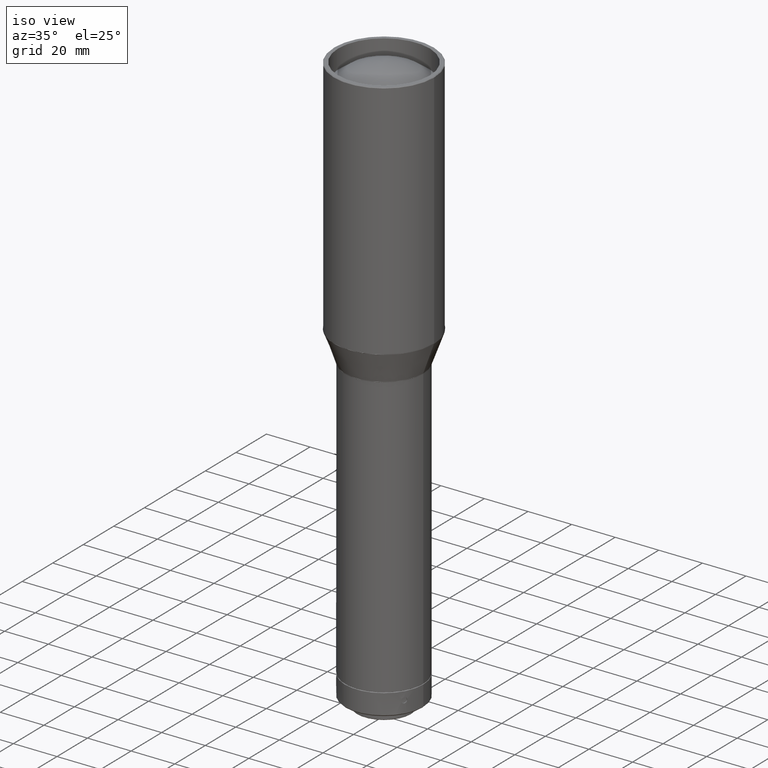
[diagram: clean part render]
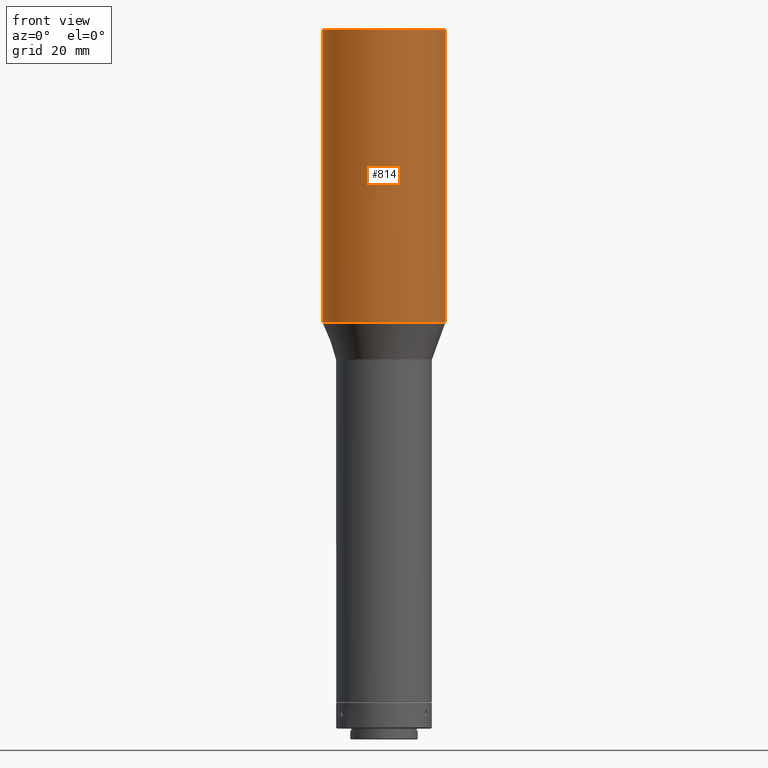
[diagram: tour spotlight — one face highlighted and labeled with its STEP entity id]
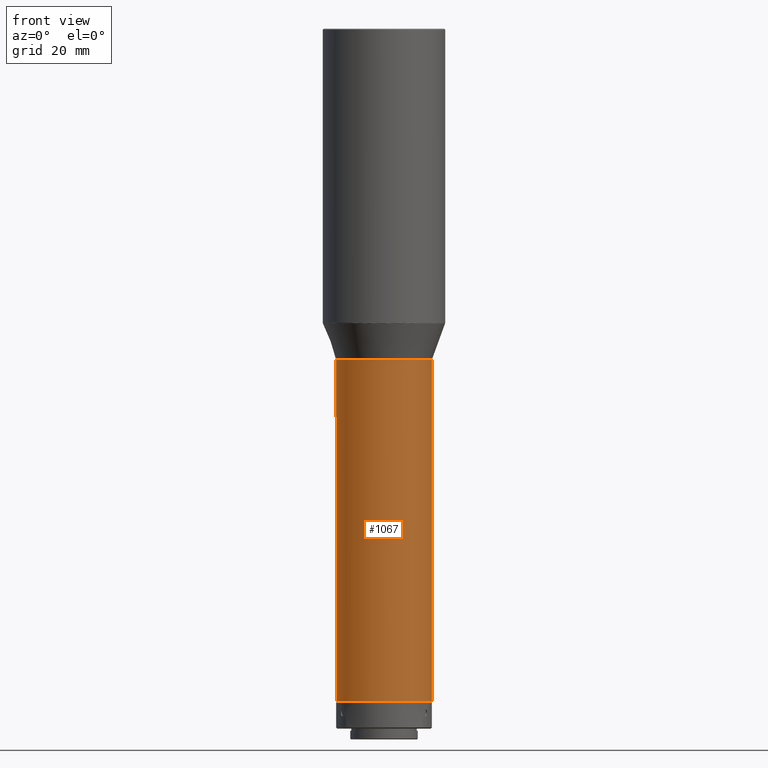
[diagram: tour spotlight — one face highlighted and labeled with its STEP entity id]
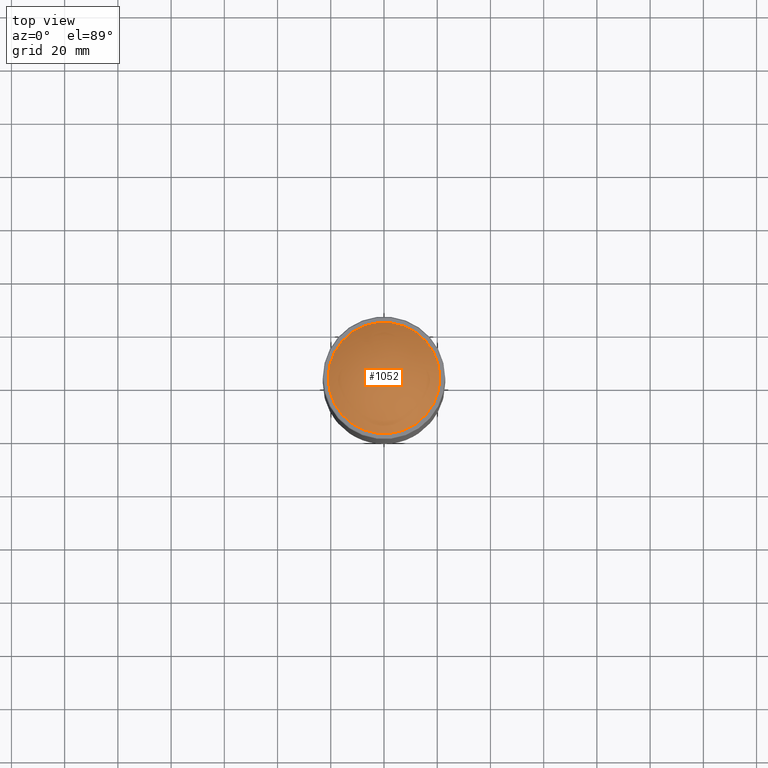
[diagram: tour spotlight — one face highlighted and labeled with its STEP entity id]
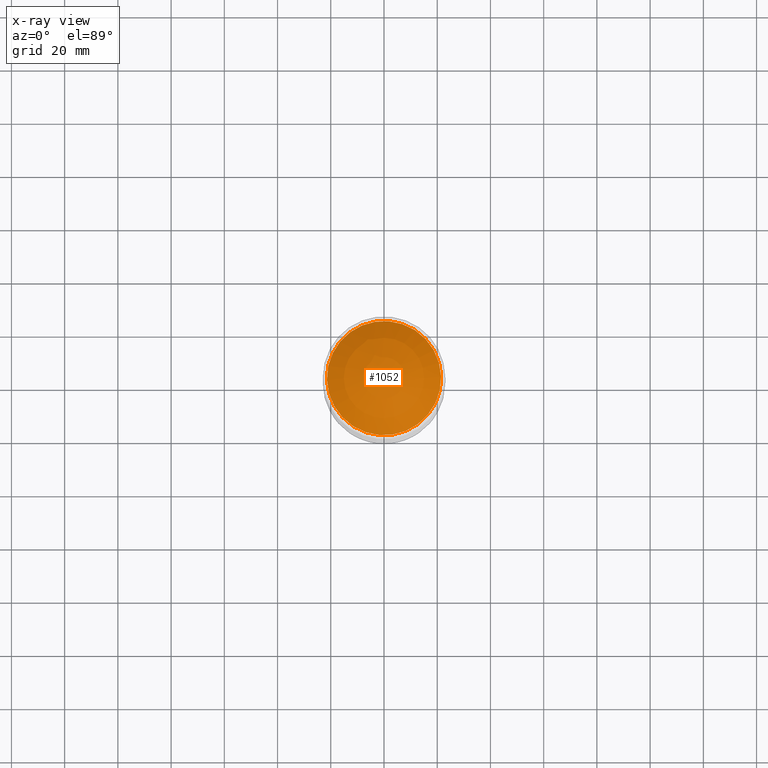
[diagram: x-ray of the same camera — body ghosted, this tour face saturated]
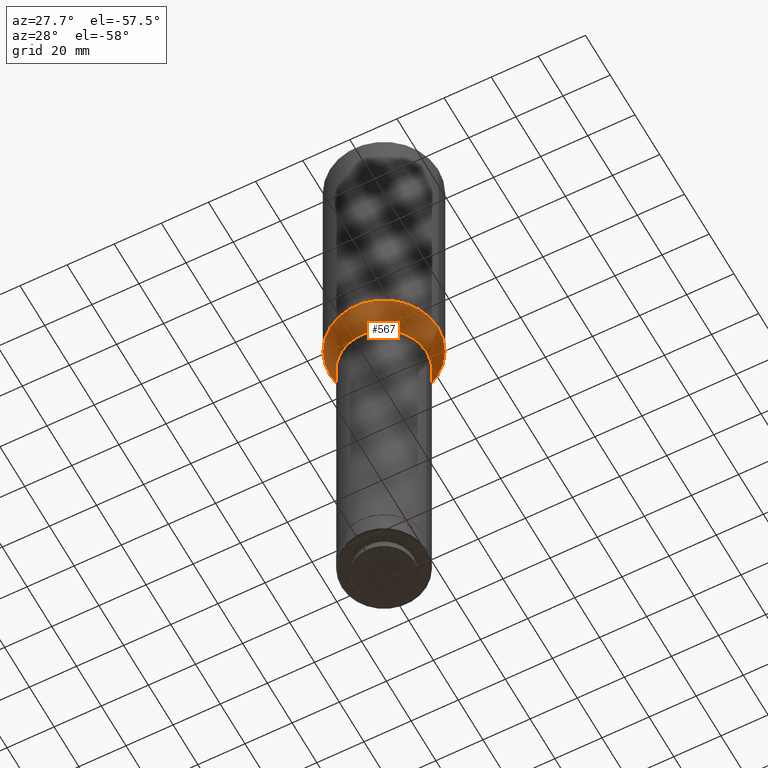
[diagram: tour spotlight — one face highlighted and labeled with its STEP entity id]
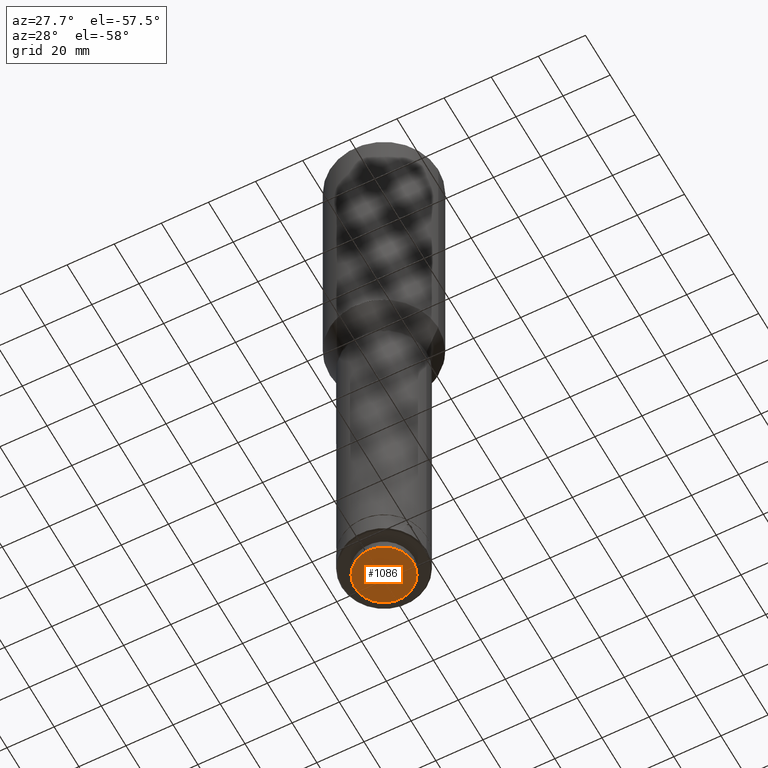
[diagram: tour spotlight — one face highlighted and labeled with its STEP entity id]
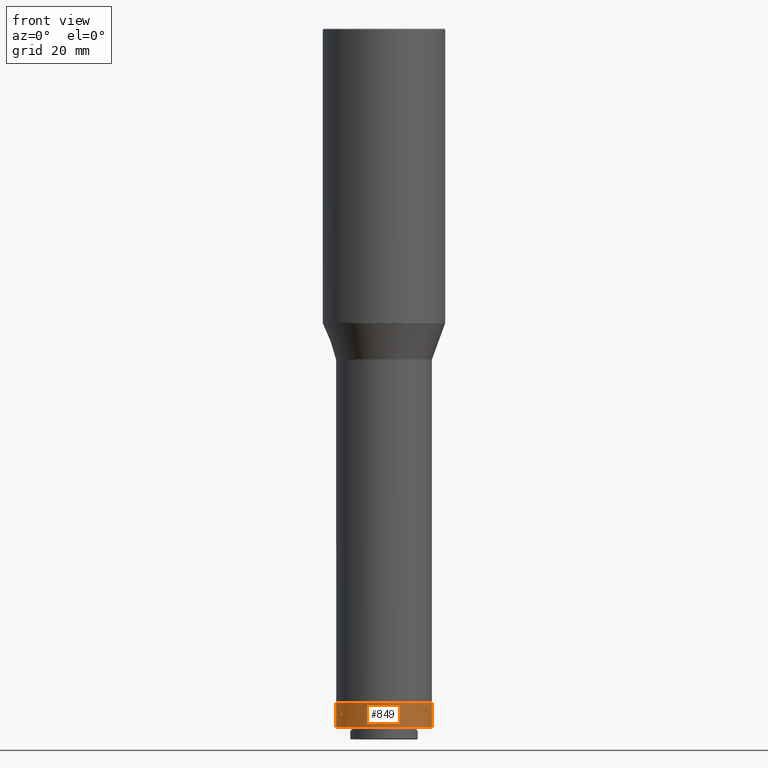
[diagram: tour spotlight — one face highlighted and labeled with its STEP entity id]
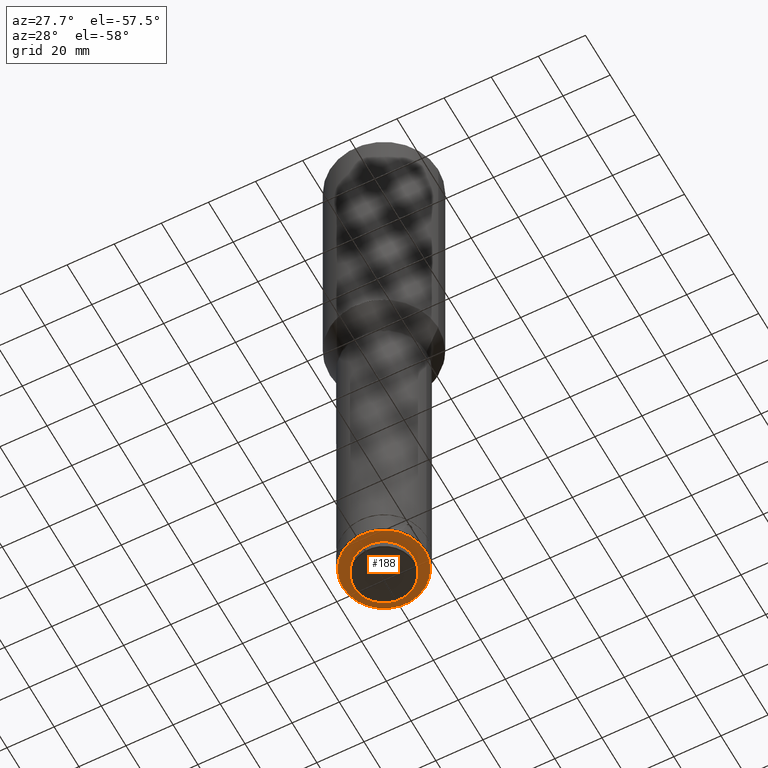
[diagram: tour spotlight — one face highlighted and labeled with its STEP entity id]
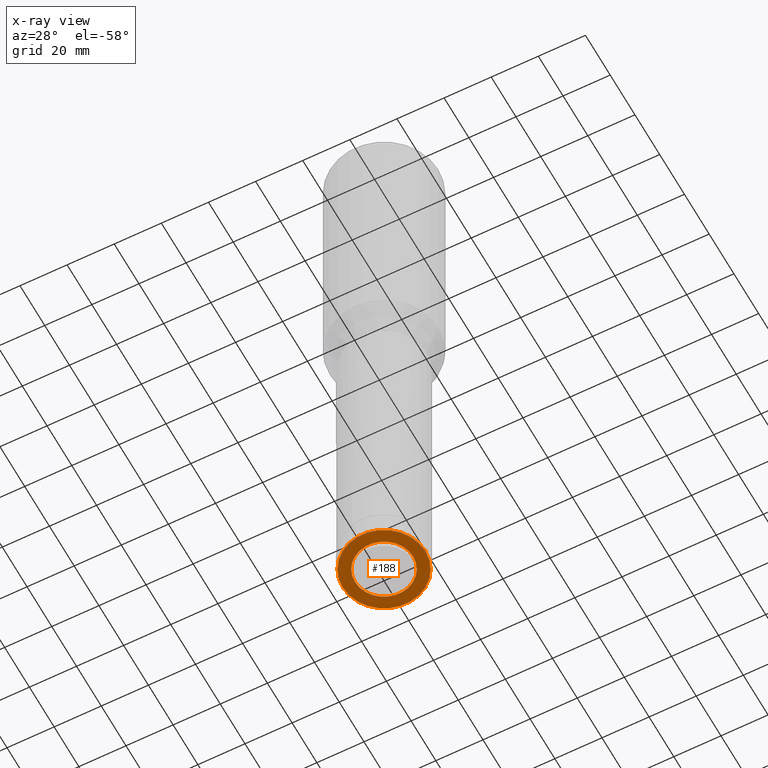
[diagram: x-ray of the same camera — body ghosted, this tour face saturated]
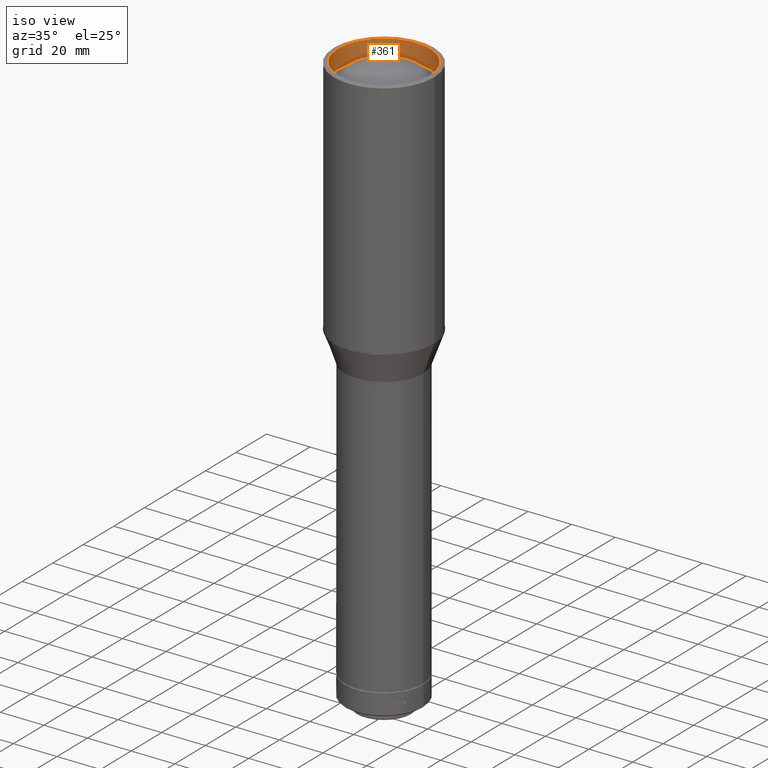
[diagram: tour spotlight — one face highlighted and labeled with its STEP entity id]
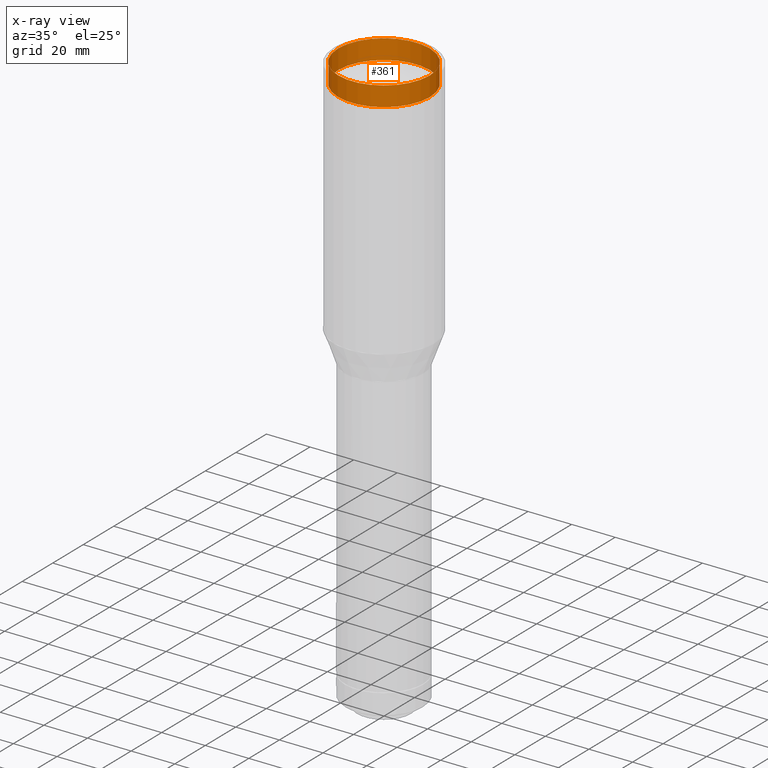
[diagram: x-ray of the same camera — body ghosted, this tour face saturated]
A machine part: a face-by-face anatomy tour. The part has 28 B-rep faces; the first image is the clean iso view, then the 8 largest visible faces are spotlighted one at a time (largest first), each with its STEP entity span.

Face 1 — front view, entity #814. In plain terms, the highlighted cylindrical surface (bore or boss wall) has radius 23 mm, axis along (0, -0, 1).
Definition (entity closure, byte-faithful):
#9 = FACE_OUTER_BOUND ( 'NONE', #668, .T. ) ;
#19 = EDGE_CURVE ( 'NONE', #526, #526, #1142, .T. ) ;
#80 = CARTESIAN_POINT ( 'NONE',  ( -1.311835599802159480E-14, -1.577111222069661861E-15, -492.4484950192920110 ) ) ;
#148 = EDGE_LOOP ( 'NONE', ( #614 ) ) ;
#190 = EDGE_CURVE ( 'NONE', #410, #410, #979, .T. ) ;
#410 = VERTEX_POINT ( 'NONE', #583 ) ;
#484 = AXIS2_PLACEMENT_3D ( 'NONE', #826, #898, #643 ) ;
#488 = DIRECTION ( 'NONE',  ( 1.000000000000000000, 0.000000000000000000, 0.000000000000000000 ) ) ;
#526 = VERTEX_POINT ( 'NONE', #945 ) ;
#555 = CYLINDRICAL_SURFACE ( 'NONE', #808, 23.00000000000000000 ) ;
#574 = DIRECTION ( 'NONE',  ( 1.110223024625157033E-16, -8.326672684688671588E-17, 1.000000000000000000 ) ) ;
#583 = CARTESIAN_POINT ( 'NONE',  ( 23.00000000000000000, -1.074881586943671244E-14, -382.2999999999999545 ) ) ;
#614 = ORIENTED_EDGE ( 'NONE', *, *, #190, .T. ) ;
#643 = DIRECTION ( 'NONE',  ( 1.000000000000000000, 0.000000000000000000, 0.000000000000000000 ) ) ;
#668 = EDGE_LOOP ( 'NONE', ( #911 ) ) ;
#692 = DIRECTION ( 'NONE',  ( 1.000000000000000000, 0.000000000000000000, 0.000000000000000000 ) ) ;
#796 = DIRECTION ( 'NONE',  ( 1.110223024625157033E-16, -8.326672684688671588E-17, 1.000000000000000000 ) ) ;
#808 = AXIS2_PLACEMENT_3D ( 'NONE', #1004, #574, #488 ) ;
#814 = ADVANCED_FACE ( 'NONE', ( #9, #1081 ), #555, .T. ) ;
#826 = CARTESIAN_POINT ( 'NONE',  ( -8.894164681988508993E-16, -1.074881586943671244E-14, -382.2999999999999545 ) ) ;
#898 = DIRECTION ( 'NONE',  ( -1.110223024625157033E-16, 8.326672684688671588E-17, -1.000000000000000000 ) ) ;
#911 = ORIENTED_EDGE ( 'NONE', *, *, #19, .T. ) ;
#945 = CARTESIAN_POINT ( 'NONE',  ( 22.99999999999998579, -1.577111222069661861E-15, -492.4484950192920110 ) ) ;
#979 = CIRCLE ( 'NONE', #484, 23.00000000000000000 ) ;
#1004 = CARTESIAN_POINT ( 'NONE',  ( -8.561097774601000685E-16, -1.077379588749077625E-14, -382.0000000000000000 ) ) ;
#1081 = FACE_OUTER_BOUND ( 'NONE', #148, .T. ) ;
#1087 = AXIS2_PLACEMENT_3D ( 'NONE', #80, #796, #692 ) ;
#1142 = CIRCLE ( 'NONE', #1087, 23.00000000000000000 ) ;

Face 2 — front view, entity #1067. In plain terms, the highlighted cylindrical surface (bore or boss wall) has radius 18 mm, axis along (0, -0, 1).
Definition (entity closure, byte-faithful):
#73 = EDGE_CURVE ( 'NONE', #153, #153, #141, .T. ) ;
#141 = CIRCLE ( 'NONE', #448, 17.99999999999999645 ) ;
#144 = DIRECTION ( 'NONE',  ( 1.110223024625158759E-16, -8.326672684688676518E-17, 1.000000000000000000 ) ) ;
#153 = VERTEX_POINT ( 'NONE', #1036 ) ;
#160 = DIRECTION ( 'NONE',  ( -1.110223024625158759E-16, 8.326672684688676518E-17, -1.000000000000000000 ) ) ;
#166 = CIRCLE ( 'NONE', #666, 17.99999999999998224 ) ;
#191 = DIRECTION ( 'NONE',  ( 1.000000000000000000, 0.000000000000000000, 0.000000000000000000 ) ) ;
#247 = CARTESIAN_POINT ( 'NONE',  ( -4.084962870054682394E-14, 5.702647918337709996E-15, -634.9448220000001584 ) ) ;
#293 = CYLINDRICAL_SURFACE ( 'NONE', #330, 17.99999999999998224 ) ;
#318 = DIRECTION ( 'NONE',  ( 1.110223024625158759E-16, -8.326672684688676518E-17, 1.000000000000000000 ) ) ;
#319 = VERTEX_POINT ( 'NONE', #667 ) ;
#330 = AXIS2_PLACEMENT_3D ( 'NONE', #1003, #318, #191 ) ;
#393 = EDGE_LOOP ( 'NONE', ( #1117 ) ) ;
#395 = FACE_OUTER_BOUND ( 'NONE', #393, .T. ) ;
#412 = ORIENTED_EDGE ( 'NONE', *, *, #770, .T. ) ;
#425 = EDGE_LOOP ( 'NONE', ( #412 ) ) ;
#448 = AXIS2_PLACEMENT_3D ( 'NONE', #967, #160, #888 ) ;
#570 = FACE_OUTER_BOUND ( 'NONE', #425, .T. ) ;
#603 = DIRECTION ( 'NONE',  ( 1.000000000000000000, 0.000000000000000000, 0.000000000000000000 ) ) ;
#666 = AXIS2_PLACEMENT_3D ( 'NONE', #247, #144, #603 ) ;
#667 = CARTESIAN_POINT ( 'NONE',  ( 17.99999999999993960, 5.702647918337709996E-15, -634.9448220000001584 ) ) ;
#770 = EDGE_CURVE ( 'NONE', #319, #319, #166, .T. ) ;
#888 = DIRECTION ( 'NONE',  ( 1.000000000000000000, -1.387778780781445182E-16, 0.000000000000000000 ) ) ;
#967 = CARTESIAN_POINT ( 'NONE',  ( -2.659366718682423316E-14, -4.989323216954218101E-15, -506.5385360779819166 ) ) ;
#1003 = CARTESIAN_POINT ( 'NONE',  ( -2.266722252775026602E-14, -7.934156711259683199E-15, -471.1722666709893019 ) ) ;
#1036 = CARTESIAN_POINT ( 'NONE',  ( 17.99999999999996803, -7.487325022360819528E-15, -506.5385360779819166 ) ) ;
#1067 = ADVANCED_FACE ( 'NONE', ( #570, #395 ), #293, .T. ) ;
#1117 = ORIENTED_EDGE ( 'NONE', *, *, #73, .T. ) ;

Face 3 — top view, entity #1052. An x-ray twin of the same camera follows (body ghosted, this face saturated) — the face is partly hidden behind the body. In plain terms, the highlighted spherical surface has radius 31.2095 mm.
Definition (entity closure, byte-faithful):
#44 = EDGE_LOOP ( 'NONE', ( #234 ) ) ;
#62 = AXIS2_PLACEMENT_3D ( 'NONE', #389, #582, #331 ) ;
#132 = AXIS2_PLACEMENT_3D ( 'NONE', #661, #918, #1013 ) ;
#234 = ORIENTED_EDGE ( 'NONE', *, *, #339, .F. ) ;
#243 = CARTESIAN_POINT ( 'NONE',  ( 8.217209483082314136, -19.81591518845252864, -391.0000000000000000 ) ) ;
#331 = DIRECTION ( 'NONE',  ( 0.3830490080632378835, -0.9237280213470682178, 0.000000000000000000 ) ) ;
#339 = EDGE_CURVE ( 'NONE', #1024, #1024, #961, .T. ) ;
#389 = CARTESIAN_POINT ( 'NONE',  ( 0.000000000000000000, -1.734723475976807094E-15, -391.0000000000000000 ) ) ;
#577 = FACE_OUTER_BOUND ( 'NONE', #44, .T. ) ;
#582 = DIRECTION ( 'NONE',  ( -1.232595164407830946E-32, -1.318609258053555361E-16, -1.000000000000000000 ) ) ;
#661 = CARTESIAN_POINT ( 'NONE',  ( 0.000000000000000000, -6.938893903907228378E-15, -413.6680567275546991 ) ) ;
#918 = DIRECTION ( 'NONE',  ( 4.665676044949140993E-17, 1.934749774458438248E-17, 1.000000000000000000 ) ) ;
#924 = SPHERICAL_SURFACE ( 'NONE', #132, 31.20951493132240273 ) ;
#961 = CIRCLE ( 'NONE', #62, 21.45211006975307910 ) ;
#1013 = DIRECTION ( 'NONE',  ( -0.3830490080632378835, 0.9237280213470681067, 0.000000000000000000 ) ) ;
#1024 = VERTEX_POINT ( 'NONE', #243 ) ;
#1052 = ADVANCED_FACE ( 'NONE', ( #577 ), #924, .T. ) ;

Face 4 — auxiliary view, entity #567. In plain terms, the highlighted conical surface has half-angle 20 deg.
Definition (entity closure, byte-faithful):
#51 = CARTESIAN_POINT ( 'NONE',  ( -22.93969262078594085, -2.950554053521622452E-15, -492.7905151626176234 ) ) ;
#60 = EDGE_LOOP ( 'NONE', ( #568 ) ) ;
#66 = VERTEX_POINT ( 'NONE', #51 ) ;
#91 = DIRECTION ( 'NONE',  ( 1.110223024625158759E-16, -8.326672684688676518E-17, 1.000000000000000000 ) ) ;
#137 = CARTESIAN_POINT ( 'NONE',  ( -2.506733025049765150E-14, -6.134075919199164600E-15, -492.7905151626176234 ) ) ;
#161 = CIRCLE ( 'NONE', #812, 18.06030737921405915 ) ;
#275 = CARTESIAN_POINT ( 'NONE',  ( -2.655569532302366090E-14, -5.017802114804646506E-15, -506.1965159346563041 ) ) ;
#376 = EDGE_CURVE ( 'NONE', #66, #66, #720, .T. ) ;
#423 = VERTEX_POINT ( 'NONE', #779 ) ;
#446 = CARTESIAN_POINT ( 'NONE',  ( -2.602085213965210642E-14, -6.134075919199149611E-15, -492.7905151626176234 ) ) ;
#537 = DIRECTION ( 'NONE',  ( 1.000000000000000000, 0.000000000000000000, 0.000000000000000000 ) ) ;
#540 = DIRECTION ( 'NONE',  ( 1.000000000000000000, -1.387778780781445922E-16, 0.000000000000000000 ) ) ;
#567 = ADVANCED_FACE ( 'NONE', ( #949, #805 ), #708, .T. ) ;
#568 = ORIENTED_EDGE ( 'NONE', *, *, #576, .T. ) ;
#576 = EDGE_CURVE ( 'NONE', #423, #423, #161, .T. ) ;
#653 = EDGE_LOOP ( 'NONE', ( #1134 ) ) ;
#686 = DIRECTION ( 'NONE',  ( -1.000000000000000000, 1.387778780781446169E-16, 0.000000000000000000 ) ) ;
#708 = CONICAL_SURFACE ( 'NONE', #1103, 22.93969262078588400, 0.3490658503988669503 ) ;
#720 = CIRCLE ( 'NONE', #759, 22.93969262078591598 ) ;
#759 = AXIS2_PLACEMENT_3D ( 'NONE', #137, #1028, #686 ) ;
#779 = CARTESIAN_POINT ( 'NONE',  ( 18.06030737921403428, -7.524173250331030051E-15, -506.1965159346563041 ) ) ;
#799 = DIRECTION ( 'NONE',  ( 0.000000000000000000, -0.000000000000000000, 1.000000000000000000 ) ) ;
#805 = FACE_OUTER_BOUND ( 'NONE', #653, .T. ) ;
#812 = AXIS2_PLACEMENT_3D ( 'NONE', #275, #91, #540 ) ;
#949 = FACE_BOUND ( 'NONE', #60, .T. ) ;
#1028 = DIRECTION ( 'NONE',  ( 1.110223024625158759E-16, -8.326672684688676518E-17, 1.000000000000000000 ) ) ;
#1103 = AXIS2_PLACEMENT_3D ( 'NONE', #446, #799, #537 ) ;
#1134 = ORIENTED_EDGE ( 'NONE', *, *, #376, .F. ) ;

Face 5 — auxiliary view, entity #1086. In plain terms, the highlighted planar face has unit normal (-0, -0, 1).
Definition (entity closure, byte-faithful):
#118 = DIRECTION ( 'NONE',  ( 0.000000000000000000, 0.000000000000000000, 1.000000000000000000 ) ) ;
#163 = EDGE_LOOP ( 'NONE', ( #483 ) ) ;
#173 = AXIS2_PLACEMENT_3D ( 'NONE', #485, #118, #1007 ) ;
#481 = PLANE ( 'NONE',  #1060 ) ;
#483 = ORIENTED_EDGE ( 'NONE', *, *, #981, .F. ) ;
#485 = CARTESIAN_POINT ( 'NONE',  ( 1.734723475976807094E-15, 1.743382805730993371E-14, -649.0448220000001811 ) ) ;
#573 = DIRECTION ( 'NONE',  ( 1.000000000000000000, 0.000000000000000000, 1.110223024625154568E-16 ) ) ;
#595 = CARTESIAN_POINT ( 'NONE',  ( 12.39999999999998970, 1.743382805730993371E-14, -649.0448220000001811 ) ) ;
#823 = CIRCLE ( 'NONE', #173, 12.39999999999998792 ) ;
#828 = DIRECTION ( 'NONE',  ( -1.110223024625154568E-16, -6.938893903907198333E-18, 1.000000000000000000 ) ) ;
#846 = VERTEX_POINT ( 'NONE', #595 ) ;
#981 = EDGE_CURVE ( 'NONE', #846, #846, #823, .T. ) ;
#993 = CARTESIAN_POINT ( 'NONE',  ( 1.574058863050023593E-15, 10.75000000000002842, -649.0448220000001811 ) ) ;
#1007 = DIRECTION ( 'NONE',  ( 1.000000000000000000, 0.000000000000000000, 0.000000000000000000 ) ) ;
#1060 = AXIS2_PLACEMENT_3D ( 'NONE', #993, #828, #573 ) ;
#1086 = ADVANCED_FACE ( 'NONE', ( #1091 ), #481, .F. ) ;
#1091 = FACE_OUTER_BOUND ( 'NONE', #163, .T. ) ;

Face 6 — front view, entity #849. In plain terms, the highlighted cylindrical surface (bore or boss wall) has radius 18 mm, axis along (-0, -0, 1).
Definition (entity closure, byte-faithful):
#4 = CARTESIAN_POINT ( 'NONE',  ( 15.50735797605625521, -9.140483702072643268, -640.2949343759026988 ) ) ;
#6 = CIRCLE ( 'NONE', #869, 18.00000000000004619 ) ;
#11 = CARTESIAN_POINT ( 'NONE',  ( 14.92582393315542255, -10.06080413865837109, -639.0448220000002948 ) ) ;
#35 = FACE_BOUND ( 'NONE', #123, .T. ) ;
#39 = CARTESIAN_POINT ( 'NONE',  ( -15.19139325230760207, -9.655839439901388488, -638.0437259321262218 ) ) ;
#41 = CYLINDRICAL_SURFACE ( 'NONE', #287, 18.00000000000002487 ) ;
#48 = CARTESIAN_POINT ( 'NONE',  ( -14.92582410297039530, -10.06080388672738124, -639.2100232896941634 ) ) ;
#54 = CARTESIAN_POINT ( 'NONE',  ( -15.26509725241262494, -9.539377978348499099, -637.9521463457094796 ) ) ;
#55 = CARTESIAN_POINT ( 'NONE',  ( 0.7665048592950636230, 17.98405222760588273, -640.0459186175248760 ) ) ;
#67 = CARTESIAN_POINT ( 'NONE',  ( -16.17582393315553446, -7.895740629197071314, -639.0448220000002948 ) ) ;
#69 = ORIENTED_EDGE ( 'NONE', *, *, #157, .T. ) ;
#70 = CARTESIAN_POINT ( 'NONE',  ( -0.7665056236648915000, 17.98405219532860855, -638.0437259321263355 ) ) ;
#76 = CARTESIAN_POINT ( 'NONE',  ( 0.1639396191514416457, 17.99999215467093094, -637.7949349727664412 ) ) ;
#78 = CARTESIAN_POINT ( 'NONE',  ( 14.92582393315540301, -10.06080413865839418, -638.8796227607349465 ) ) ;
#81 = CARTESIAN_POINT ( 'NONE',  ( -1.217463806281650296, 17.95889011854552564, -639.3721228894954720 ) ) ;
#82 = CARTESIAN_POINT ( 'NONE',  ( 16.06471715756163832, -8.120254114432432502, -638.2769028980899293 ) ) ;
#88 = CARTESIAN_POINT ( 'NONE',  ( 15.89407479287074665, -8.449912178065822843, -640.1371181720306822 ) ) ;
#97 = CARTESIAN_POINT ( 'NONE',  ( 15.95885680708794574, -8.326356316898305465, -640.0439920424840921 ) ) ;
#103 = DIRECTION ( 'NONE',  ( -1.110223024625158020E-16, -6.938893903907199104E-18, 1.000000000000000000 ) ) ;
#106 = B_SPLINE_CURVE_WITH_KNOTS ( 'NONE', 3,
 ( #164, #874, #346, #620, #267, #1119, #357, #886, #76, #170, #1136, #530, #70, #694, #975, #175, #337, #709, #81, #440, #535, #881, #798, #856, #151, #445, #1058, #1045, #55, #703, #1140, #524, #1053, #434 ),
 .UNSPECIFIED., .T., .F.,
 ( 4, 2, 2, 2, 2, 2, 2, 2, 2, 2, 2, 2, 2, 2, 2, 2, 4 ),
 ( 0.000000000000000000, 0.0004885519476059284501, 0.0009771038952118569001, 0.001465655842817785350, 0.001954207790423713800, 0.002442759738029642250, 0.002931311685635570700, 0.003419863633241499151, 0.003908415580847427601, 0.004396967528453355617, 0.004885519476059284501, 0.005374071423665213385, 0.005862623371271141401, 0.006351175318877069417, 0.006839727266482998301, 0.007328279214088927185, 0.007816831161694855201 ),
 .UNSPECIFIED. ) ;
#123 = EDGE_LOOP ( 'NONE', ( #387 ) ) ;
#126 = FACE_OUTER_BOUND ( 'NONE', #322, .T. ) ;
#129 = CARTESIAN_POINT ( 'NONE',  ( -16.10573089449707496, -8.037996915324857383, -639.6752479346065456 ) ) ;
#134 = VERTEX_POINT ( 'NONE', #67 ) ;
#136 = CARTESIAN_POINT ( 'NONE',  ( -15.19026449493899200, -9.657597251847127140, -640.0439920424840921 ) ) ;
#151 = CARTESIAN_POINT ( 'NONE',  ( -0.1639394304986140916, 17.99999215467996194, -640.2947090273643198 ) ) ;
#157 = EDGE_CURVE ( 'NONE', #224, #224, #497, .T. ) ;
#164 = CARTESIAN_POINT ( 'NONE',  ( 1.249999999999993339, 17.95654476785557918, -639.0448220000000674 ) ) ;
#170 = CARTESIAN_POINT ( 'NONE',  ( -0.1622122895000118192, 18.00000780388934274, -637.7947096239676057 ) ) ;
#172 = CARTESIAN_POINT ( 'NONE',  ( 15.95789887597215362, -8.328212755427120584, -638.0437259321262218 ) ) ;
#175 = CARTESIAN_POINT ( 'NONE',  ( -1.217386932848440351, 17.95889559784538392, -638.7171987959093258 ) ) ;
#203 = CARTESIAN_POINT ( 'NONE',  ( 14.94416663059035599, -10.03373538488429695, -639.3724470172559222 ) ) ;
#220 = CARTESIAN_POINT ( 'NONE',  ( -16.16158720264614956, -7.925089998557202087, -638.7175229706283517 ) ) ;
#224 = VERTEX_POINT ( 'NONE', #870 ) ;
#235 = CARTESIAN_POINT ( 'NONE',  ( -15.01384736159117494, -9.929166118684831233, -639.6748296652777981 ) ) ;
#239 = CARTESIAN_POINT ( 'NONE',  ( -16.06431486166299294, -8.121028761097687010, -638.2761908769150523 ) ) ;
#242 = CARTESIAN_POINT ( 'NONE',  ( 14.94412286735165374, -10.03380008369034826, -638.7175229706283517 ) ) ;
#258 = CARTESIAN_POINT ( 'NONE',  ( 15.19026408422145380, -9.657597898278533322, -638.0456525139833275 ) ) ;
#264 = CARTESIAN_POINT ( 'NONE',  ( 15.74948724688814217, -8.716454428236504626, -637.8270371631306261 ) ) ;
#267 = CARTESIAN_POINT ( 'NONE',  ( 0.9991402188564681985, 17.97261914514093917, -638.2761908769151660 ) ) ;
#278 = CARTESIAN_POINT ( 'NONE',  ( 16.17582379988438390, -7.895740902226656033, -639.2100232896941634 ) ) ;
#287 = AXIS2_PLACEMENT_3D ( 'NONE', #557, #1102, #298 ) ;
#292 = FACE_OUTER_BOUND ( 'NONE', #879, .T. ) ;
#296 = CARTESIAN_POINT ( 'NONE',  ( 15.67042018912280099, -8.858020365846076771, -640.2947090273642061 ) ) ;
#298 = DIRECTION ( 'NONE',  ( 1.000000000000000000, 0.000000000000000000, 0.000000000000000000 ) ) ;
#300 = EDGE_LOOP ( 'NONE', ( #1031 ) ) ;
#315 = CARTESIAN_POINT ( 'NONE',  ( -15.26487600238793441, -9.539716451242950868, -640.1371181720306822 ) ) ;
#317 = FACE_BOUND ( 'NONE', #969, .T. ) ;
#320 = B_SPLINE_CURVE_WITH_KNOTS ( 'NONE', 3,
 ( #1039, #693, #220, #501, #239, #1112, #329, #324, #685, #776, #1106, #54, #39, #407, #677, #1099, #336, #48, #1027, #235, #592, #136, #315, #660, #1032, #1012, #514, #928, #941, #426, #129, #1020, #597, #345 ),
 .UNSPECIFIED., .T., .F.,
 ( 4, 2, 2, 2, 2, 2, 2, 2, 2, 2, 2, 2, 2, 2, 2, 2, 4 ),
 ( 0.000000000000000000, 0.0004885519476059294259, 0.0009771038952118588517, 0.001465655842817788386, 0.001954207790423717703, 0.002442759738029647021, 0.002931311685635576772, 0.003419863633241506089, 0.003908415580847435407, 0.004396967528453365158, 0.004885519476059294042, 0.005374071423665223793, 0.005862623371271153544, 0.006351175318877082428, 0.006839727266483012179, 0.007328279214088941063, 0.007816831161694870814 ),
 .UNSPECIFIED. ) ;
#322 = EDGE_LOOP ( 'NONE', ( #533 ) ) ;
#324 = CARTESIAN_POINT ( 'NONE',  ( -15.75062872817975901, -8.714374564439967941, -637.8278066990361594 ) ) ;
#329 = CARTESIAN_POINT ( 'NONE',  ( -15.89407510756413444, -8.449911588734551060, -637.9525261845232080 ) ) ;
#336 = CARTESIAN_POINT ( 'NONE',  ( -14.92582376334308414, -10.06080439058546716, -638.8796252969528950 ) ) ;
#337 = CARTESIAN_POINT ( 'NONE',  ( -1.250000303081702180, 17.95654474675731649, -638.8796252969532361 ) ) ;
#345 = CARTESIAN_POINT ( 'NONE',  ( -16.17582393315553801, -7.895740629197071314, -639.0448220000002948 ) ) ;
#346 = CARTESIAN_POINT ( 'NONE',  ( 1.217464335294314859, 17.95889008224768801, -638.7175229706282380 ) ) ;
#357 = CARTESIAN_POINT ( 'NONE',  ( 0.6291994582050528528, 17.98962860717572809, -637.9525261845229807 ) ) ;
#364 = EDGE_CURVE ( 'NONE', #504, #504, #6, .T. ) ;
#371 = AXIS2_PLACEMENT_3D ( 'NONE', #636, #103, #470 ) ;
#375 = CARTESIAN_POINT ( 'NONE',  ( 16.16158696957454666, -7.925090474844777688, -639.3721228894951309 ) ) ;
#378 = CARTESIAN_POINT ( 'NONE',  ( 16.17582406642461734, -7.895740356171729424, -638.8796252969528950 ) ) ;
#387 = ORIENTED_EDGE ( 'NONE', *, *, #746, .T. ) ;
#404 = EDGE_CURVE ( 'NONE', #415, #415, #106, .T. ) ;
#407 = CARTESIAN_POINT ( 'NONE',  ( -15.06470492706446684, -9.852326105843829396, -638.2769028980899293 ) ) ;
#415 = VERTEX_POINT ( 'NONE', #857 ) ;
#426 = CARTESIAN_POINT ( 'NONE',  ( -16.06471677035732881, -8.120254879791536595, -639.8127421707624762 ) ) ;
#434 = CARTESIAN_POINT ( 'NONE',  ( 1.249999999999993339, 17.95654476785557918, -639.0448220000000674 ) ) ;
#440 = CARTESIAN_POINT ( 'NONE',  ( -1.091986416381329317, 17.96695628302236258, -639.6748296652781391 ) ) ;
#442 = CARTESIAN_POINT ( 'NONE',  ( 15.66957017123615437, -8.859523938431868473, -637.7947096239676057 ) ) ;
#445 = CARTESIAN_POINT ( 'NONE',  ( 0.1622121008445730206, 18.00000780388030464, -640.2949343759024714 ) ) ;
#447 = CARTESIAN_POINT ( 'NONE',  ( 16.10573125108191306, -8.037996199706910261, -638.4143974048876089 ) ) ;
#455 = CARTESIAN_POINT ( 'NONE',  ( 15.06470539628279326, -9.852325387835419335, -639.8127421707627036 ) ) ;
#462 = CARTESIAN_POINT ( 'NONE',  ( 15.19139366244534806, -9.655838794076540665, -640.0459186175247623 ) ) ;
#465 = CARTESIAN_POINT ( 'NONE',  ( 15.75062854503696919, -8.714374892937582828, -640.2618373772535278 ) ) ;
#470 = DIRECTION ( 'NONE',  ( 1.000000000000000000, 0.000000000000000000, 0.000000000000000000 ) ) ;
#497 = B_SPLINE_CURVE_WITH_KNOTS ( 'NONE', 3,
 ( #1035, #78, #242, #705, #972, #258, #1126, #1042, #790, #442, #264, #617, #172, #82, #447, #627, #378, #278, #375, #731, #807, #97, #88, #465, #296, #4, #1065, #986, #462, #455, #563, #203, #893, #11 ),
 .UNSPECIFIED., .T., .F.,
 ( 4, 2, 2, 2, 2, 2, 2, 2, 2, 2, 2, 2, 2, 2, 2, 2, 4 ),
 ( 0.000000000000000000, 0.0004885519476059293174, 0.0009771038952118586349, 0.001465655842817787952, 0.001954207790423717270, 0.002442759738029646587, 0.002931311685635575905, 0.003419863633241505222, 0.003908415580847434539, 0.004396967528453364291, 0.004885519476059293174, 0.005374071423665222058, 0.005862623371271151809, 0.006351175318877081560, 0.006839727266483010444, 0.007328279214088939328, 0.007816831161694869079 ),
 .UNSPECIFIED. ) ;
#501 = CARTESIAN_POINT ( 'NONE',  ( -16.10583412538214887, -8.037789467238031449, -638.4148156262731391 ) ) ;
#504 = VERTEX_POINT ( 'NONE', #853 ) ;
#514 = CARTESIAN_POINT ( 'NONE',  ( -15.74948706598770443, -8.716454752419855012, -640.2626069096972969 ) ) ;
#524 = CARTESIAN_POINT ( 'NONE',  ( 1.217386422865420093, 17.95889563292112356, -639.3724470172559222 ) ) ;
#530 = CARTESIAN_POINT ( 'NONE',  ( -0.6287950393457077958, 17.98965100100363657, -637.9521463457097070 ) ) ;
#533 = ORIENTED_EDGE ( 'NONE', *, *, #364, .F. ) ;
#535 = CARTESIAN_POINT ( 'NONE',  ( -0.9991393837938855604, 17.97261919133776331, -639.8134541668030124 ) ) ;
#557 = CARTESIAN_POINT ( 'NONE',  ( 6.164915043108251895E-16, 1.733876521082640279E-14, -635.0448219999999537 ) ) ;
#563 = CARTESIAN_POINT ( 'NONE',  ( 15.01397497146087900, -9.928973643487813305, -639.6752479346065456 ) ) ;
#588 = CARTESIAN_POINT ( 'NONE',  ( 6.497981950495766119E-16, 1.734084687899757307E-14, -635.3448220000000219 ) ) ;
#592 = CARTESIAN_POINT ( 'NONE',  ( -15.06517510034527163, -9.851589683955904064, -639.8134541668023303 ) ) ;
#597 = CARTESIAN_POINT ( 'NONE',  ( -16.17582393315553091, -7.895740629197097071, -639.2100212392657568 ) ) ;
#617 = CARTESIAN_POINT ( 'NONE',  ( 15.89389229175800899, -8.450273022655029109, -637.9521463457094796 ) ) ;
#620 = CARTESIAN_POINT ( 'NONE',  ( 1.091987193791648991, 17.96695623533832986, -638.4148156262726843 ) ) ;
#627 = CARTESIAN_POINT ( 'NONE',  ( 16.16155327807076247, -7.925159788840821840, -638.7171987959093258 ) ) ;
#636 = CARTESIAN_POINT ( 'NONE',  ( 1.671203377704719860E-15, 1.740468470291352462E-14, -644.5448219999999537 ) ) ;
#655 = FACE_BOUND ( 'NONE', #300, .T. ) ;
#660 = CARTESIAN_POINT ( 'NONE',  ( -15.42218430790379102, -9.283256999105455876, -640.2618373772535278 ) ) ;
#677 = CARTESIAN_POINT ( 'NONE',  ( -15.01397453000998716, -9.928974310108317880, -638.4143974048876089 ) ) ;
#682 = CARTESIAN_POINT ( 'NONE',  ( 18.00000000000002487, 1.740468470291352462E-14, -644.5448219999999537 ) ) ;
#685 = CARTESIAN_POINT ( 'NONE',  ( -15.67042028344150317, -8.858020202463196213, -637.7949349727663275 ) ) ;
#693 = CARTESIAN_POINT ( 'NONE',  ( -16.17582393315554512, -7.895740629197045557, -638.8796227607349465 ) ) ;
#694 = CARTESIAN_POINT ( 'NONE',  ( -1.000012230497476340, 17.97258022027634894, -638.2769028980902704 ) ) ;
#703 = CARTESIAN_POINT ( 'NONE',  ( 1.000011374074573300, 17.97258026762714778, -639.8127421707624762 ) ) ;
#705 = CARTESIAN_POINT ( 'NONE',  ( 15.01384693159026185, -9.929166768100156304, -638.4148156262731391 ) ) ;
#709 = CARTESIAN_POINT ( 'NONE',  ( -1.249999696914079417, 17.95654478895415807, -639.2100232896942771 ) ) ;
#731 = CARTESIAN_POINT ( 'NONE',  ( 16.10583377797243898, -8.037790164337410559, -639.6748296652777981 ) ) ;
#746 = EDGE_CURVE ( 'NONE', #134, #134, #320, .T. ) ;
#750 = DIRECTION ( 'NONE',  ( -1.110223024625158020E-16, -6.938893903907199104E-18, 1.000000000000000000 ) ) ;
#776 = CARTESIAN_POINT ( 'NONE',  ( -15.50735788173648544, -9.140483865457357027, -637.7947096239676057 ) ) ;
#790 = CARTESIAN_POINT ( 'NONE',  ( 15.50648066428972172, -9.141971952207596175, -637.7949349727663275 ) ) ;
#798 = CARTESIAN_POINT ( 'NONE',  ( -0.6291987904827325284, 17.98962862930889273, -640.1371181720307959 ) ) ;
#807 = CARTESIAN_POINT ( 'NONE',  ( 16.06431448413921359, -8.121029507381731349, -639.8134541668023303 ) ) ;
#849 = ADVANCED_FACE ( 'NONE', ( #292, #317, #35, #126, #655 ), #41, .T. ) ;
#853 = CARTESIAN_POINT ( 'NONE',  ( -18.00000000000004619, 1.634164615683493218E-14, -635.3448220000000219 ) ) ;
#856 = CARTESIAN_POINT ( 'NONE',  ( -0.3284442371330738575, 17.99763189204317015, -640.2618373772538689 ) ) ;
#857 = CARTESIAN_POINT ( 'NONE',  ( 1.249999999999993117, 17.95654476785557918, -639.0448220000000674 ) ) ;
#869 = AXIS2_PLACEMENT_3D ( 'NONE', #588, #750, #937 ) ;
#870 = CARTESIAN_POINT ( 'NONE',  ( 14.92582393315542078, -10.06080413865837464, -639.0448220000002948 ) ) ;
#874 = CARTESIAN_POINT ( 'NONE',  ( 1.249999999999993117, 17.95654476785557563, -638.8796227607347191 ) ) ;
#879 = EDGE_LOOP ( 'NONE', ( #1122 ) ) ;
#881 = CARTESIAN_POINT ( 'NONE',  ( -0.7685923121488452692, 17.98395356874555517, -640.0439920424842057 ) ) ;
#886 = CARTESIAN_POINT ( 'NONE',  ( 0.3284446131915345068, 17.99763188640067213, -637.8278066990360458 ) ) ;
#893 = CARTESIAN_POINT ( 'NONE',  ( 14.92582393315544032, -10.06080413865834799, -639.2100212392657568 ) ) ;
#928 = CARTESIAN_POINT ( 'NONE',  ( -15.89389197149336219, -8.450273622267822304, -640.1374980156608672 ) ) ;
#934 = VERTEX_POINT ( 'NONE', #682 ) ;
#937 = DIRECTION ( 'NONE',  ( -1.000000000000000000, -5.551115123125772841E-17, 0.000000000000000000 ) ) ;
#941 = CARTESIAN_POINT ( 'NONE',  ( -15.95789852174035062, -8.328213433529155552, -640.0459186175247623 ) ) ;
#969 = EDGE_LOOP ( 'NONE', ( #69 ) ) ;
#972 = CARTESIAN_POINT ( 'NONE',  ( 15.06517464280622143, -9.851590384043113602, -638.2761908769150523 ) ) ;
#973 = EDGE_CURVE ( 'NONE', #934, #934, #974, .T. ) ;
#974 = CIRCLE ( 'NONE', #371, 18.00000000000002487 ) ;
#975 = CARTESIAN_POINT ( 'NONE',  ( -1.091756721072178804, 17.96697050981534360, -638.4143974048877226 ) ) ;
#986 = CARTESIAN_POINT ( 'NONE',  ( 15.26509761156022371, -9.539377401184770733, -640.1374980156607535 ) ) ;
#1012 = CARTESIAN_POINT ( 'NONE',  ( -15.66957007690072601, -8.859524101807529917, -640.2949343759026988 ) ) ;
#1020 = CARTESIAN_POINT ( 'NONE',  ( -16.16155305345586513, -7.925160248036694277, -639.3724470172559222 ) ) ;
#1027 = CARTESIAN_POINT ( 'NONE',  ( -14.94412316329299273, -10.03379964370063782, -639.3721228894951309 ) ) ;
#1031 = ORIENTED_EDGE ( 'NONE', *, *, #404, .T. ) ;
#1032 = CARTESIAN_POINT ( 'NONE',  ( -15.50648075862408604, -9.141971788833750168, -640.2947090273642061 ) ) ;
#1035 = CARTESIAN_POINT ( 'NONE',  ( 14.92582393315542255, -10.06080413865837109, -639.0448220000002948 ) ) ;
#1039 = CARTESIAN_POINT ( 'NONE',  ( -16.17582393315553801, -7.895740629197071314, -639.0448220000002948 ) ) ;
#1042 = CARTESIAN_POINT ( 'NONE',  ( 15.42218411498790154, -9.283257321960576292, -637.8278066990361594 ) ) ;
#1045 = CARTESIAN_POINT ( 'NONE',  ( 0.6287943599332018740, 17.98965102345272626, -640.1374980156608672 ) ) ;
#1053 = CARTESIAN_POINT ( 'NONE',  ( 1.249999999999993339, 17.95654476785558273, -639.2100212392655294 ) ) ;
#1058 = CARTESIAN_POINT ( 'NONE',  ( 0.3260722864606758198, 17.99768327192974127, -640.2626069096975243 ) ) ;
#1065 = CARTESIAN_POINT ( 'NONE',  ( 15.42341477952709994, -9.281228519509760133, -640.2626069096972969 ) ) ;
#1099 = CARTESIAN_POINT ( 'NONE',  ( -14.94416634522251641, -10.03373580900444750, -638.7171987959093258 ) ) ;
#1102 = DIRECTION ( 'NONE',  ( -1.110223024625158020E-16, -6.938893903907199104E-18, 1.000000000000000000 ) ) ;
#1106 = CARTESIAN_POINT ( 'NONE',  ( -15.42341458922630615, -9.281228838265828784, -637.8270371631306261 ) ) ;
#1112 = CARTESIAN_POINT ( 'NONE',  ( -15.95885716155518885, -8.326355637990774383, -638.0456525139833275 ) ) ;
#1119 = CARTESIAN_POINT ( 'NONE',  ( 0.7685930773333946586, 17.98395353626944271, -638.0456525139832138 ) ) ;
#1122 = ORIENTED_EDGE ( 'NONE', *, *, #973, .T. ) ;
#1126 = CARTESIAN_POINT ( 'NONE',  ( 15.26487564935877650, -9.539717018441049134, -637.9525261845232080 ) ) ;
#1136 = CARTESIAN_POINT ( 'NONE',  ( -0.3260726576621937878, 17.99768326650244177, -637.8270371631307398 ) ) ;
#1140 = CARTESIAN_POINT ( 'NONE',  ( 1.091755923036135334, 17.96697055881280036, -639.6752479346065456 ) ) ;

Face 7 — auxiliary view, entity #188. An x-ray twin of the same camera follows (body ghosted, this face saturated) — the face is partly hidden behind the body. In plain terms, the highlighted planar face has unit normal (-0, -0, 1).
Definition (entity closure, byte-faithful):
#58 = VERTEX_POINT ( 'NONE', #764 ) ;
#93 = AXIS2_PLACEMENT_3D ( 'NONE', #1014, #222, #1021 ) ;
#133 = VERTEX_POINT ( 'NONE', #845 ) ;
#158 = CIRCLE ( 'NONE', #93, 12.30000000000001670 ) ;
#178 = AXIS2_PLACEMENT_3D ( 'NONE', #272, #546, #820 ) ;
#188 = ADVANCED_FACE ( 'NONE', ( #195, #723 ), #736, .F. ) ;
#195 = FACE_BOUND ( 'NONE', #1104, .T. ) ;
#211 = CIRCLE ( 'NONE', #656, 17.49999999999991118 ) ;
#222 = DIRECTION ( 'NONE',  ( 1.110223024625158020E-16, 6.938893903907199104E-18, -1.000000000000000000 ) ) ;
#272 = CARTESIAN_POINT ( 'NONE',  ( 1.043927368791510517E-15, 12.30000000000003979, -645.0448220000001811 ) ) ;
#281 = EDGE_CURVE ( 'NONE', #133, #133, #211, .T. ) ;
#316 = DIRECTION ( 'NONE',  ( 1.000000000000000000, 0.000000000000000000, 0.000000000000000000 ) ) ;
#323 = EDGE_CURVE ( 'NONE', #58, #58, #158, .T. ) ;
#417 = ORIENTED_EDGE ( 'NONE', *, *, #323, .F. ) ;
#546 = DIRECTION ( 'NONE',  ( -1.110223024625154568E-16, -6.938893903907198333E-18, 1.000000000000000000 ) ) ;
#585 = EDGE_LOOP ( 'NONE', ( #842 ) ) ;
#656 = AXIS2_PLACEMENT_3D ( 'NONE', #929, #1107, #316 ) ;
#723 = FACE_OUTER_BOUND ( 'NONE', #585, .T. ) ;
#736 = PLANE ( 'NONE',  #178 ) ;
#764 = CARTESIAN_POINT ( 'NONE',  ( 12.30000000000001847, 1.740815414986547823E-14, -645.0448220000001811 ) ) ;
#820 = DIRECTION ( 'NONE',  ( 1.000000000000000000, 0.000000000000000000, 1.110223024625154568E-16 ) ) ;
#842 = ORIENTED_EDGE ( 'NONE', *, *, #281, .F. ) ;
#845 = CARTESIAN_POINT ( 'NONE',  ( 17.49999999999991118, 1.740468470291352777E-14, -645.0448220000000674 ) ) ;
#929 = CARTESIAN_POINT ( 'NONE',  ( 1.734723475976807094E-15, 1.740468470291352777E-14, -645.0448220000000674 ) ) ;
#1014 = CARTESIAN_POINT ( 'NONE',  ( 1.726714528935996422E-15, 1.740815414986547823E-14, -645.0448220000001811 ) ) ;
#1021 = DIRECTION ( 'NONE',  ( 1.000000000000000000, 0.000000000000000000, 0.000000000000000000 ) ) ;
#1104 = EDGE_LOOP ( 'NONE', ( #417 ) ) ;
#1107 = DIRECTION ( 'NONE',  ( 0.000000000000000000, 0.000000000000000000, 1.000000000000000000 ) ) ;

Face 8 — iso view, entity #361. An x-ray twin of the same camera follows (body ghosted, this face saturated) — the face is partly hidden behind the body. In plain terms, the highlighted cylindrical surface (bore or boss wall) has radius 21 mm, axis along (-0, -0, 1).
Definition (entity closure, byte-faithful):
#46 = CARTESIAN_POINT ( 'NONE',  ( 0.000000000000000000, -1.074881586943671086E-14, -391.0000000000000000 ) ) ;
#50 = CIRCLE ( 'NONE', #713, 20.99999999999999645 ) ;
#65 = DIRECTION ( 'NONE',  ( 1.000000000000000000, 0.000000000000000000, 0.000000000000000000 ) ) ;
#150 = EDGE_CURVE ( 'NONE', #697, #697, #341, .T. ) ;
#156 = CARTESIAN_POINT ( 'NONE',  ( 0.000000000000000000, -1.074881586943671086E-14, -391.0000000000000000 ) ) ;
#208 = DIRECTION ( 'NONE',  ( 1.000000000000000000, 0.000000000000000000, 0.000000000000000000 ) ) ;
#228 = FACE_OUTER_BOUND ( 'NONE', #748, .T. ) ;
#259 = ORIENTED_EDGE ( 'NONE', *, *, #150, .T. ) ;
#341 = CIRCLE ( 'NONE', #659, 20.99999999999999645 ) ;
#356 = ORIENTED_EDGE ( 'NONE', *, *, #732, .F. ) ;
#361 = ADVANCED_FACE ( 'NONE', ( #843, #228 ), #678, .F. ) ;
#405 = AXIS2_PLACEMENT_3D ( 'NONE', #46, #1000, #208 ) ;
#436 = DIRECTION ( 'NONE',  ( 0.000000000000000000, 0.000000000000000000, 1.000000000000000000 ) ) ;
#499 = VERTEX_POINT ( 'NONE', #1037 ) ;
#590 = CARTESIAN_POINT ( 'NONE',  ( 20.99999999999999645, -1.074881586943671086E-14, -382.0000000000000000 ) ) ;
#659 = AXIS2_PLACEMENT_3D ( 'NONE', #689, #436, #65 ) ;
#678 = CYLINDRICAL_SURFACE ( 'NONE', #405, 20.99999999999999645 ) ;
#689 = CARTESIAN_POINT ( 'NONE',  ( 0.000000000000000000, -1.074881586943671086E-14, -382.0000000000000000 ) ) ;
#697 = VERTEX_POINT ( 'NONE', #590 ) ;
#713 = AXIS2_PLACEMENT_3D ( 'NONE', #156, #947, #936 ) ;
#732 = EDGE_CURVE ( 'NONE', #499, #499, #50, .T. ) ;
#748 = EDGE_LOOP ( 'NONE', ( #259 ) ) ;
#843 = FACE_OUTER_BOUND ( 'NONE', #927, .T. ) ;
#927 = EDGE_LOOP ( 'NONE', ( #356 ) ) ;
#936 = DIRECTION ( 'NONE',  ( 1.000000000000000000, 0.000000000000000000, 0.000000000000000000 ) ) ;
#947 = DIRECTION ( 'NONE',  ( 0.000000000000000000, 0.000000000000000000, 1.000000000000000000 ) ) ;
#1000 = DIRECTION ( 'NONE',  ( -0.000000000000000000, -0.000000000000000000, 1.000000000000000000 ) ) ;
#1037 = CARTESIAN_POINT ( 'NONE',  ( 20.99999999999999645, -1.074881586943671086E-14, -391.0000000000000000 ) ) ;